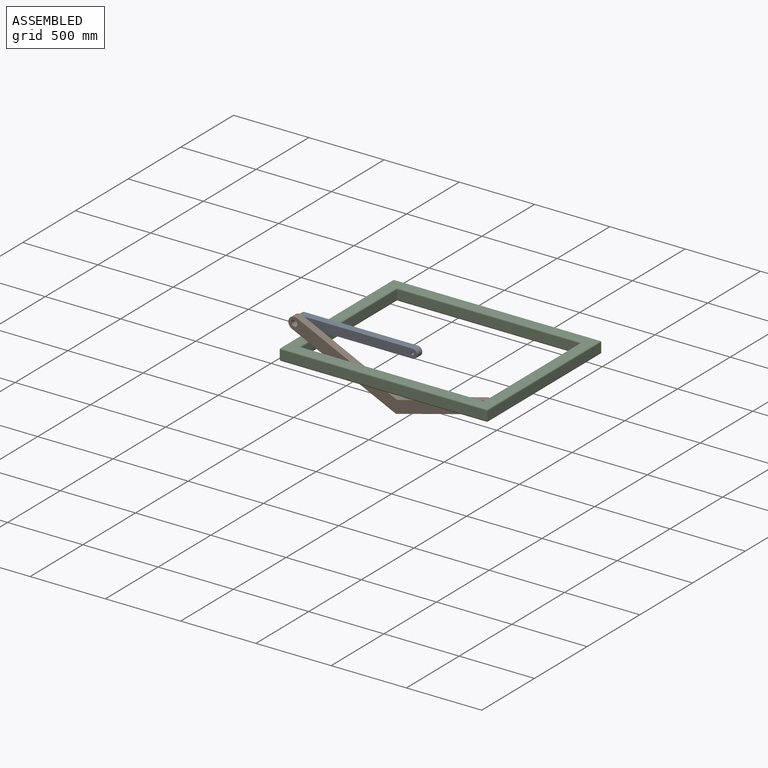
[diagram: assembled view]
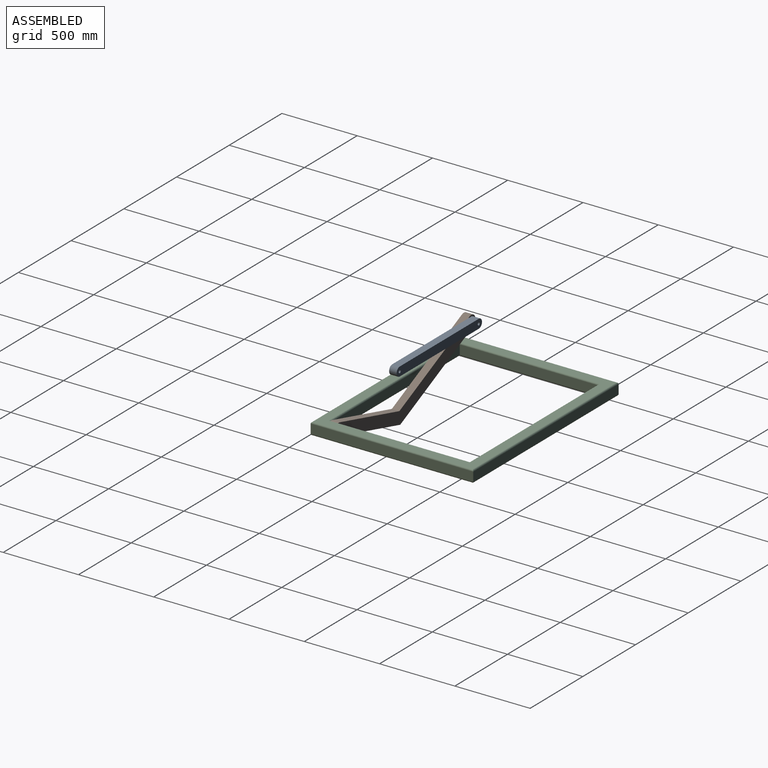
[diagram: assembled view, second angle]
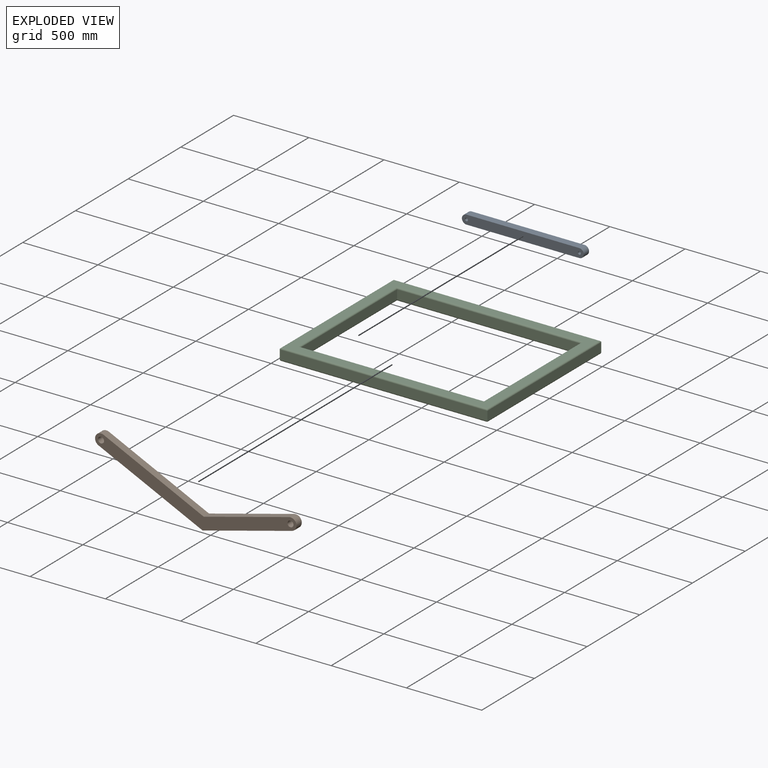
[diagram: exploded view]
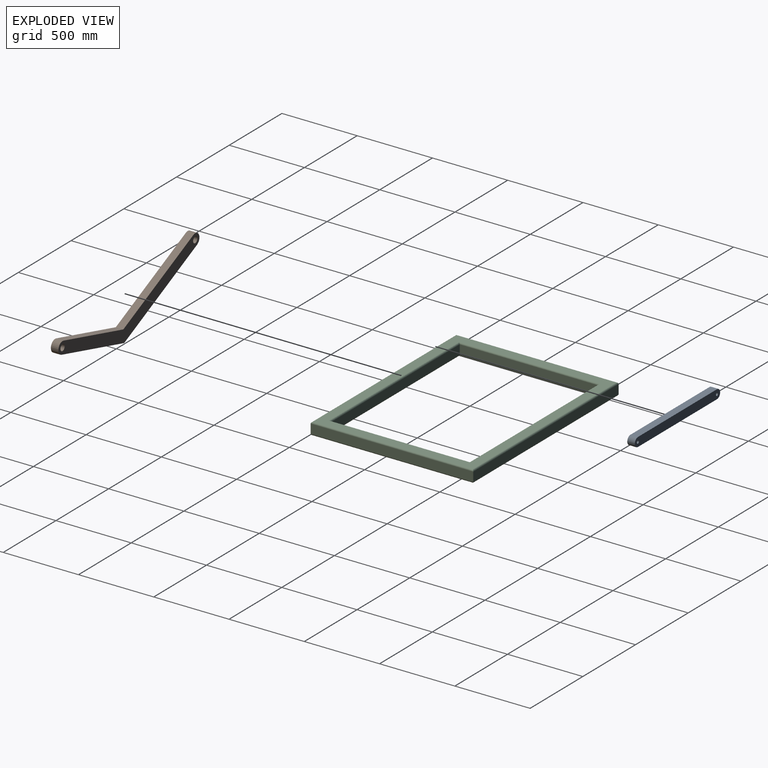
[diagram: exploded view, second angle]
ASSEMBLY  parts=3 mates=2
PART A: 8 faces, bbox 60x810x50 mm
  f0: plane 750x50mm, normal (1,0,0), area 37500mm2, adj f1,f4,f6,f7
  f1: cylinder r=30mm len=60mm, axis (0,0,-1), area 4712.4mm2, adj f0,f2,f6,f7
  f2: plane 750x50mm, normal (-1,0,0), area 37500mm2, adj f1,f4,f6,f7
  f3: cylinder r=10mm len=50mm, axis (0,0,-1), area 3141.6mm2, adj f6,f7
  f4: cylinder r=30mm len=60mm, axis (0,0,-1), area 4712.4mm2, adj f0,f2,f6,f7
  f5: cylinder r=10mm len=50mm, axis (0,0,-1), area 3141.6mm2, adj f6,f7
  f6: plane 810x60mm, normal (0,0,1), area 47199.1mm2, adj f0,f1,f2,f3,f4,f5
  f7: plane 810x60mm, normal (0,0,-1), area 47199.1mm2, adj f0,f1,f2,f3,f4,f5
PART B: 10 faces, bbox 465.7x1289.6x50 mm
  f0: plane 448.47x376.31mm, normal (-0.77,-0.64,0), area 29272.1mm2, adj f1,f6,f8,f9
  f1: plane 735.44x50mm, normal (-1,0,0), area 36772.1mm2, adj f0,f2,f8,f9
  f2: cylinder r=40mm len=80mm, axis (0,0,-1), area 6283.2mm2, adj f1,f3,f8,f9
  f3: plane 764.56x50mm, normal (1,0,0), area 38227.9mm2, adj f2,f4,f8,f9
  f4: plane 470.78x395.03mm, normal (0.77,0.64,0), area 30727.9mm2, adj f3,f6,f8,f9
  f5: cylinder r=20mm len=50mm, axis (0,0,-1), area 6283.2mm2, adj f8,f9
  f6: cylinder r=40mm len=70.64mm, axis (0,0,-1), area 6283.2mm2, adj f0,f4,f8,f9
  f7: cylinder r=20mm len=50mm, axis (0,0,-1), area 6283.2mm2, adj f8,f9
  f8: plane 1289.63x465.67mm, normal (0,0,1), area 110513.3mm2, adj f0,f1,f2,f3,f4,f5,f6,f7
  f9: plane 1289.63x465.67mm, normal (0,0,-1), area 110513.3mm2, adj f0,f1,f2,f3,f4,f5,f6,f7
PART C: 52 faces, bbox 1380x1080x80 mm
  f0: plane 1380x60mm, normal (0,-1,0), area 82800mm2, adj f1,f5,f11,f17
  f1: cylinder r=10mm len=1380mm, axis (-1,0,0), area 21562.7mm2, adj f0,f10,f12,f23
  f2: cylinder r=10mm len=1240mm, axis (-1,0,0), area 19277.8mm2, adj f3,f9,f13,f23
  f3: plane 1220x60mm, normal (0,1,0), area 73200mm2, adj f2,f4,f8,f14
  f4: cylinder r=10mm len=1240mm, axis (-1,0,0), area 19277.8mm2, adj f3,f7,f15,f19
  f5: cylinder r=10mm len=1380mm, axis (-1,0,0), area 21562.7mm2, adj f0,f6,f16,f19
  f6: cylinder r=10mm len=1080mm, axis (0,-1,0), area 16850.3mm2, adj f5,f11,f18,f19
  f7: cylinder r=10mm len=940mm, axis (0,-1,0), area 14565.4mm2, adj f4,f8,f19,f20
  f8: plane 920x60mm, normal (-1,0,0), area 55200mm2, adj f3,f7,f9,f21
  f9: cylinder r=10mm len=940mm, axis (0,-1,0), area 14565.4mm2, adj f2,f8,f22,f23
  f10: cylinder r=10mm len=1080mm, axis (0,-1,0), area 16850.3mm2, adj f1,f11,f23,f24
  f11: plane 1080x60mm, normal (1,0,0), area 64800mm2, adj f0,f6,f10,f25
  f12: cylinder r=10mm len=1080mm, axis (0,1,0), area 16850.3mm2, adj f1,f17,f23,f24
  f13: cylinder r=10mm len=940mm, axis (0,1,0), area 14565.4mm2, adj f2,f14,f22,f23
  f14: plane 920x60mm, normal (1,0,0), area 55200mm2, adj f3,f13,f15,f21
  f15: cylinder r=10mm len=940mm, axis (0,1,0), area 14565.4mm2, adj f4,f14,f19,f20
  f16: cylinder r=10mm len=1080mm, axis (0,1,0), area 16850.3mm2, adj f5,f17,f18,f19
  f17: plane 1080x60mm, normal (-1,0,0), area 64800mm2, adj f0,f12,f16,f25
  f18: cylinder r=10mm len=1380mm, axis (1,0,0), area 21562.7mm2, adj f6,f16,f19,f25
  f19: plane 1360x1060mm, normal (0,0,-1), area 276000mm2, adj f4,f5,f6,f7,f15,f16,f18,f20
  f20: cylinder r=10mm len=1240mm, axis (1,0,0), area 19277.8mm2, adj f7,f15,f19,f21
  f21: plane 1220x60mm, normal (0,-1,0), area 73200mm2, adj f8,f14,f20,f22
  f22: cylinder r=10mm len=1240mm, axis (1,0,0), area 19277.8mm2, adj f9,f13,f21,f23
  f23: plane 1360x1060mm, normal (0,0,1), area 276000mm2, adj f1,f2,f9,f10,f12,f13,f22,f24
  f24: cylinder r=10mm len=1380mm, axis (1,0,0), area 21562.7mm2, adj f10,f12,f23,f25
  f25: plane 1380x60mm, normal (0,1,0), area 82800mm2, adj f11,f17,f18,f24
  f26: plane 1370x60mm, normal (0,-1,0), area 82200mm2, adj f27,f33,f34,f46
  f27: cylinder r=5mm len=1370mm, axis (1,0,0), area 10732.4mm2, adj f26,f28,f35,f47
  f28: plane 1360x1060mm, normal (0,0,1), area 276000mm2, adj f27,f29,f35,f36,f41,f42,f47,f48
  f29: cylinder r=5mm len=1240mm, axis (1,0,0), area 9689.8mm2, adj f28,f30,f36,f48
  f30: plane 1230x60mm, normal (0,1,0), area 73800mm2, adj f29,f31,f37,f49
  f31: cylinder r=5mm len=1240mm, axis (1,0,0), area 9689.8mm2, adj f30,f32,f38,f50
  f32: plane 1360x1060mm, normal (0,0,-1), area 276000mm2, adj f31,f33,f38,f39,f44,f45,f50,f51
  f33: cylinder r=5mm len=1370mm, axis (1,0,0), area 10732.4mm2, adj f26,f32,f39,f51
  f34: plane 1070x60mm, normal (-1,0,0), area 64200mm2, adj f26,f35,f39,f40
  f35: cylinder r=5mm len=1070mm, axis (0,-1,0), area 8376mm2, adj f27,f28,f34,f41
  f36: cylinder r=5mm len=940mm, axis (0,-1,0), area 7333.4mm2, adj f28,f29,f37,f42
  f37: plane 930x60mm, normal (1,0,0), area 55800mm2, adj f30,f36,f38,f43
  f38: cylinder r=5mm len=940mm, axis (0,-1,0), area 7333.4mm2, adj f31,f32,f37,f44
  f39: cylinder r=5mm len=1070mm, axis (0,-1,0), area 8376mm2, adj f32,f33,f34,f45
  f40: plane 1370x60mm, normal (0,1,0), area 82200mm2, adj f34,f41,f45,f46
  f41: cylinder r=5mm len=1370mm, axis (-1,0,0), area 10732.4mm2, adj f28,f35,f40,f47
  f42: cylinder r=5mm len=1240mm, axis (-1,0,0), area 9689.8mm2, adj f28,f36,f43,f48
  f43: plane 1230x60mm, normal (0,-1,0), area 73800mm2, adj f37,f42,f44,f49
  f44: cylinder r=5mm len=1240mm, axis (-1,0,0), area 9689.8mm2, adj f32,f38,f43,f50
  f45: cylinder r=5mm len=1370mm, axis (-1,0,0), area 10732.4mm2, adj f32,f39,f40,f51
  f46: plane 1070x60mm, normal (1,0,0), area 64200mm2, adj f26,f40,f47,f51
  f47: cylinder r=5mm len=1070mm, axis (0,1,0), area 8376mm2, adj f27,f28,f41,f46
  f48: cylinder r=5mm len=940mm, axis (0,1,0), area 7333.4mm2, adj f28,f29,f42,f49
  f49: plane 930x60mm, normal (-1,0,0), area 55800mm2, adj f30,f43,f48,f50
  f50: cylinder r=5mm len=940mm, axis (0,1,0), area 7333.4mm2, adj f31,f32,f44,f49
  f51: cylinder r=5mm len=1070mm, axis (0,1,0), area 8376mm2, adj f32,f33,f45,f46
PLACE A rot(axis=(0.58,0.58,-0.58),120deg) t=(-145.97,-89.62,1310.68)mm
PLACE B rot(axis=(0.41,0.65,-0.65),135.5deg) t=(-243.86,-139.62,1538.14)mm
PLACE C t=(1233.45,333.96,67.09)mm fixed
MATE revolute B.f6 <-> C.f3  axis (0,1,0) through (546.25,-189.62,67.09)mm
MATE revolute A.f4 <-> B.f2  axis (0,-1,0) through (-712.34,-139.62,234.09)mm
